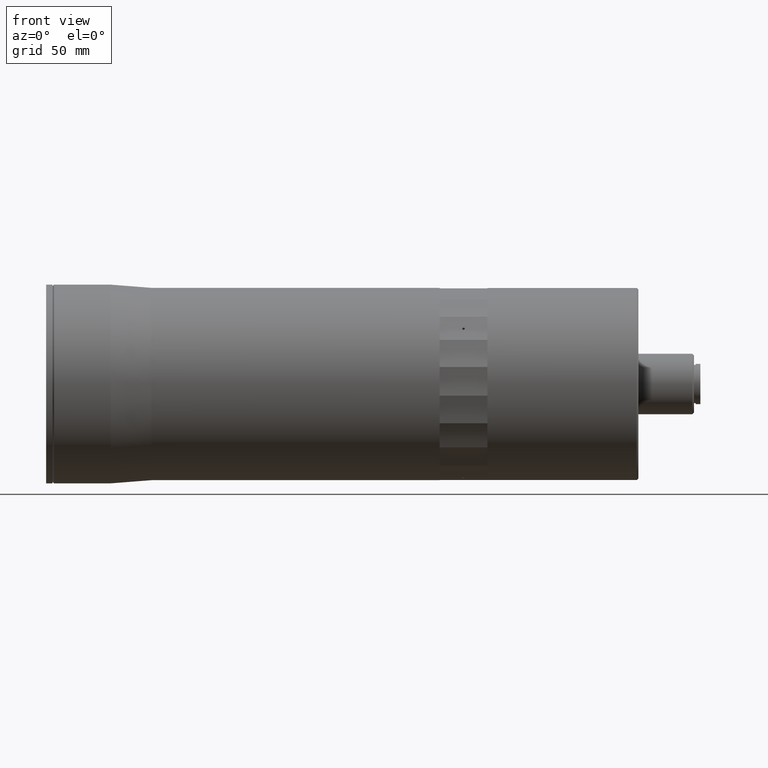
[diagram: clean part render]
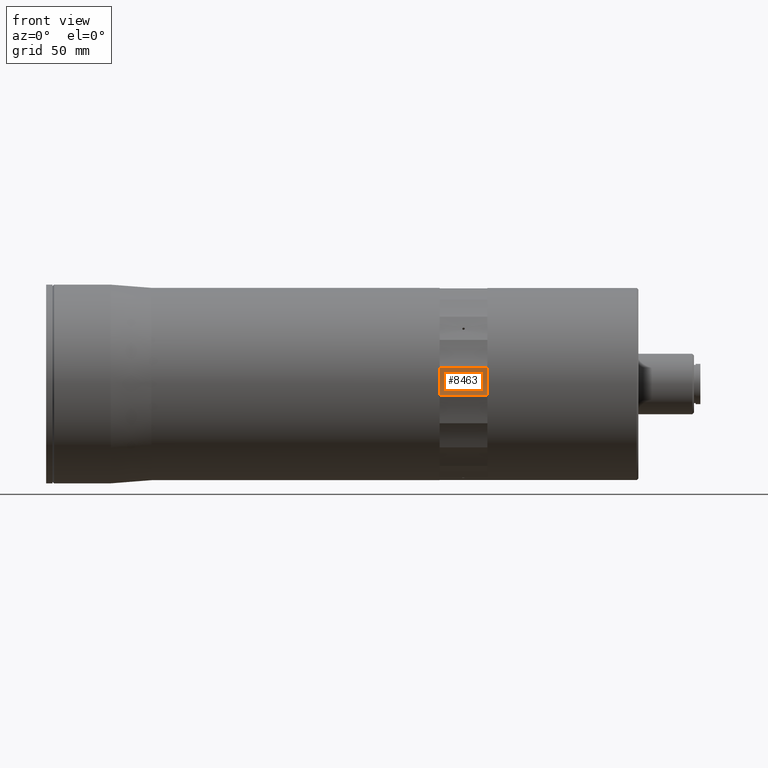
[diagram: same view with one face highlighted and labeled with its STEP entity id]
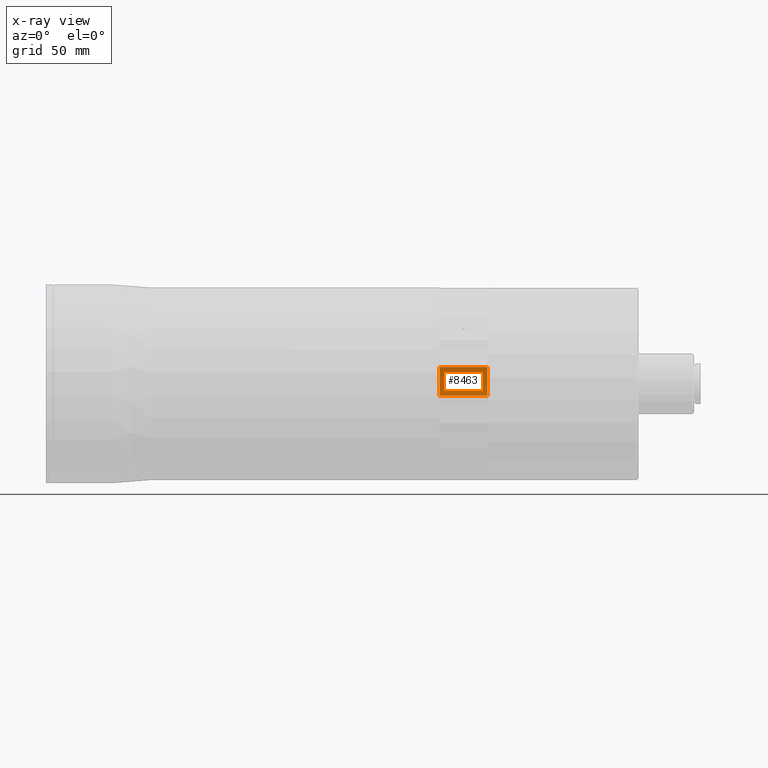
[diagram: x-ray of the same camera — body ghosted, the highlighted face saturated]
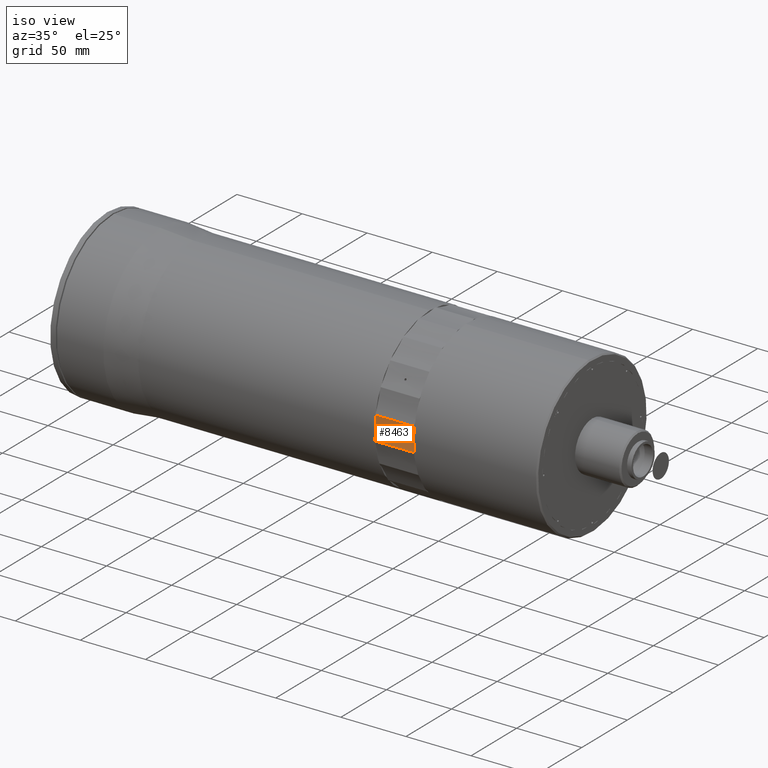
[diagram: same view with one face highlighted and labeled with its STEP entity id]
A machine part, front view. The second image highlights one B-rep face of the part: STEP entity #8463.
The next image is the same camera in x-ray: the body ghosted, the highlighted face saturated — about 0% of this face is hidden behind the body in this view.
A second angle (iso view) of the same face is appended — the face is thin or edge-on in the first view.
In plain terms, the highlighted cylindrical surface (partial cylindrical patch) has radius 75 mm, axis along (-1, 0, 0).
Its self-contained STEP definition (entity closure, byte-faithful):
#1207 = CARTESIAN_POINT ( 'NONE',  ( -125.3740095086532700, 44.39980135804224700, 41.09632148217635000 ) ) ;
#1820 = VERTEX_POINT ( 'NONE', #1207 ) ;
#2228 = DIRECTION ( 'NONE',  ( 0.0000000000000000000, -0.5633200580636116300, 0.8262387743160017900 ) ) ;
#2322 = VECTOR ( 'NONE', #19048, 1000.000000000000000 ) ;
#2472 = DIRECTION ( 'NONE',  ( 0.0000000000000000000, -0.5633200580636116300, 0.8262387743160017900 ) ) ;
#2879 = LINE ( 'NONE', #17221, #2322 ) ;
#4030 = AXIS2_PLACEMENT_3D ( 'NONE', #9166, #16300, #20129 ) ;
#4305 = AXIS2_PLACEMENT_3D ( 'NONE', #4316, #13121, #2228 ) ;
#4316 = CARTESIAN_POINT ( 'NONE',  ( -95.37400950865325900, 110.9638673906390500, 75.65388379794305300 ) ) ;
#4733 = VERTEX_POINT ( 'NONE', #22794 ) ;
#5374 = CYLINDRICAL_SURFACE ( 'NONE', #8695, 75.00000000000004300 ) ;
#7079 = ORIENTED_EDGE ( 'NONE', *, *, #7184, .T. ) ;
#7184 = EDGE_CURVE ( 'NONE', #17323, #1820, #14122, .T. ) ;
#7299 = VECTOR ( 'NONE', #13604, 1000.000000000000000 ) ;
#8073 = VERTEX_POINT ( 'NONE', #12288 ) ;
#8463 = ADVANCED_FACE ( 'NONE', ( #9024 ), #5374, .F. ) ;
#8695 = AXIS2_PLACEMENT_3D ( 'NONE', #13207, #18578, #2472 ) ;
#8799 = ORIENTED_EDGE ( 'NONE', *, *, #14630, .F. ) ;
#9024 = FACE_OUTER_BOUND ( 'NONE', #19850, .T. ) ;
#9166 = CARTESIAN_POINT ( 'NONE',  ( -125.3740095086532700, 110.9638673906390500, 75.65388379794305300 ) ) ;
#10387 = LINE ( 'NONE', #13750, #7299 ) ;
#10588 = EDGE_CURVE ( 'NONE', #17323, #8073, #10387, .T. ) ;
#12288 = CARTESIAN_POINT ( 'NONE',  ( -95.37400950865325900, 54.47655574341308700, 26.31643734122851400 ) ) ;
#13121 = DIRECTION ( 'NONE',  ( -1.000000000000000000, 0.0000000000000000000, -0.0000000000000000000 ) ) ;
#13207 = CARTESIAN_POINT ( 'NONE',  ( -75.37400950865325900, 110.9638673906390500, 75.65388379794305300 ) ) ;
#13604 = DIRECTION ( 'NONE',  ( 1.000000000000000000, -0.0000000000000000000, 0.0000000000000000000 ) ) ;
#13750 = CARTESIAN_POINT ( 'NONE',  ( -100.3740095086532700, 54.47655574341308000, 26.31643734122851400 ) ) ;
#14122 = CIRCLE ( 'NONE', #4030, 75.00000000000004300 ) ;
#14485 = CIRCLE ( 'NONE', #4305, 75.00000000000004300 ) ;
#14524 = ORIENTED_EDGE ( 'NONE', *, *, #10588, .F. ) ;
#14630 = EDGE_CURVE ( 'NONE', #4733, #1820, #2879, .T. ) ;
#16300 = DIRECTION ( 'NONE',  ( -1.000000000000000000, 0.0000000000000000000, 0.0000000000000000000 ) ) ;
#16867 = CARTESIAN_POINT ( 'NONE',  ( -125.3740095086532700, 54.47655574341311500, 26.31643734122845800 ) ) ;
#17221 = CARTESIAN_POINT ( 'NONE',  ( -100.3740095086532700, 44.39980135804229600, 41.09632148217630700 ) ) ;
#17323 = VERTEX_POINT ( 'NONE', #16867 ) ;
#18578 = DIRECTION ( 'NONE',  ( -1.000000000000000000, 0.0000000000000000000, -0.0000000000000000000 ) ) ;
#18673 = EDGE_CURVE ( 'NONE', #8073, #4733, #14485, .T. ) ;
#19048 = DIRECTION ( 'NONE',  ( -1.000000000000000000, 0.0000000000000000000, -0.0000000000000000000 ) ) ;
#19850 = EDGE_LOOP ( 'NONE', ( #7079, #8799, #20434, #14524 ) ) ;
#20129 = DIRECTION ( 'NONE',  ( 0.0000000000000000000, -0.5633200580636116300, 0.8262387743160017900 ) ) ;
#20434 = ORIENTED_EDGE ( 'NONE', *, *, #18673, .F. ) ;
#22794 = CARTESIAN_POINT ( 'NONE',  ( -95.37400950865325900, 44.39980135804229600, 41.09632148217630700 ) ) ;